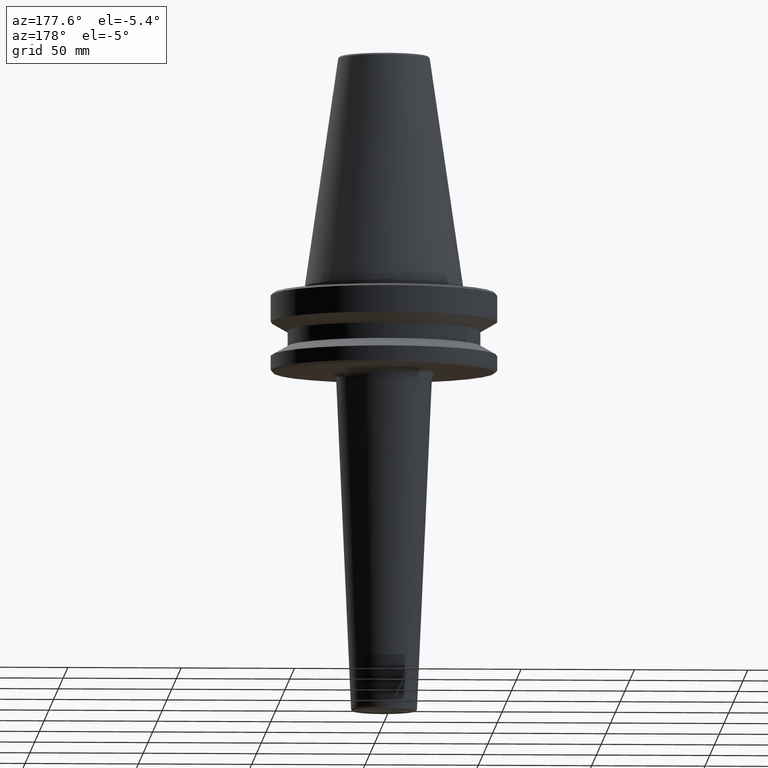
[diagram: clean part render]
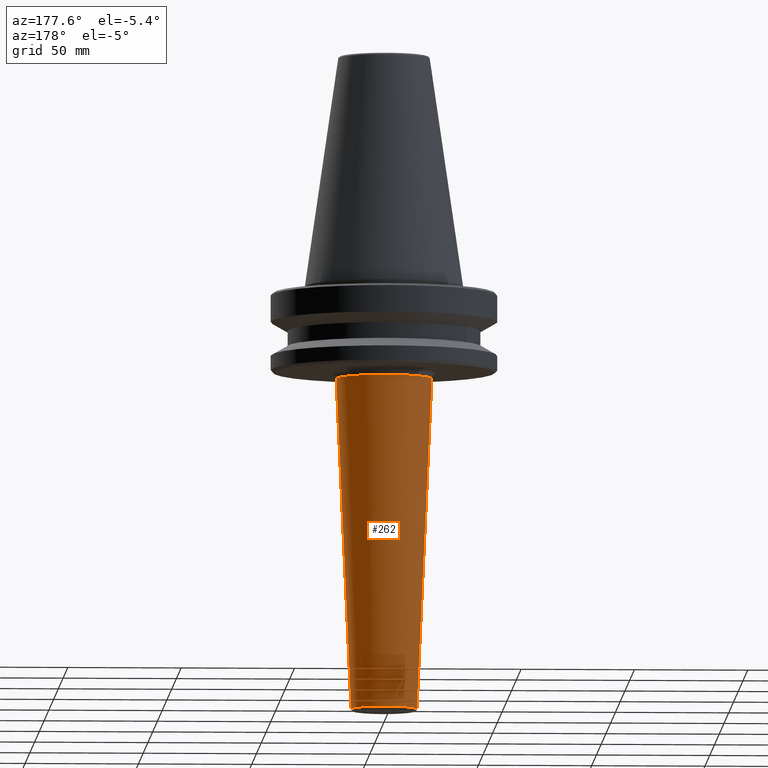
[diagram: same view with one face highlighted and labeled with its STEP entity id]
A machine part, auxiliary view. The second image highlights one B-rep face of the part: STEP entity #262.
In plain terms, the highlighted conical surface has half-angle 2.577 deg.
Its self-contained STEP definition (entity closure, byte-faithful):
#10 = AXIS2_PLACEMENT_3D ( 'NONE', #75, #738, #447 ) ;
#34 = ORIENTED_EDGE ( 'NONE', *, *, #446, .T. ) ;
#75 = CARTESIAN_POINT ( 'NONE',  ( 0.0000000000000000000, 0.0000000000000000000, -187.0449545065815200 ) ) ;
#91 = ORIENTED_EDGE ( 'NONE', *, *, #865, .T. ) ;
#94 = CARTESIAN_POINT ( 'NONE',  ( 0.0000000000000000000, 0.0000000000000000000, -38.00000000000000700 ) ) ;
#129 = EDGE_CURVE ( 'NONE', #466, #939, #393, .T. ) ;
#158 = AXIS2_PLACEMENT_3D ( 'NONE', #94, #165, #254 ) ;
#165 = DIRECTION ( 'NONE',  ( -0.0000000000000000000, -0.0000000000000000000, 1.000000000000000000 ) ) ;
#181 = DIRECTION ( 'NONE',  ( -0.04495450658148143800, 5.505339259225986400E-018, 0.9989890351440378100 ) ) ;
#208 = LINE ( 'NONE', #502, #306 ) ;
#226 = DIRECTION ( 'NONE',  ( -1.000000000000000000, 0.0000000000000000000, 0.0000000000000000000 ) ) ;
#254 = DIRECTION ( 'NONE',  ( 1.000000000000000000, 0.0000000000000000000, 0.0000000000000000000 ) ) ;
#262 = ADVANCED_FACE ( 'NONE', ( #890 ), #867, .T. ) ;
#300 = CARTESIAN_POINT ( 'NONE',  ( 0.0000000000000000000, 0.0000000000000000000, -40.86513648025557900 ) ) ;
#306 = VECTOR ( 'NONE', #181, 1000.000000000000000 ) ;
#381 = DIRECTION ( 'NONE',  ( 0.0000000000000000000, 0.0000000000000000000, -1.000000000000000000 ) ) ;
#393 = CIRCLE ( 'NONE', #10, 14.54297704720391400 ) ;
#446 = EDGE_CURVE ( 'NONE', #939, #997, #208, .T. ) ;
#447 = DIRECTION ( 'NONE',  ( 1.000000000000000000, 0.0000000000000000000, 0.0000000000000000000 ) ) ;
#466 = VERTEX_POINT ( 'NONE', #982 ) ;
#502 = CARTESIAN_POINT ( 'NONE',  ( -21.25000000000004300, 2.602374448188131000E-015, -38.00000000000000700 ) ) ;
#520 = ORIENTED_EDGE ( 'NONE', *, *, #804, .F. ) ;
#563 = CARTESIAN_POINT ( 'NONE',  ( -14.54297704720390500, 1.781001029093169000E-015, -187.0449545065815200 ) ) ;
#603 = DIRECTION ( 'NONE',  ( 0.04495450658148143800, 0.0000000000000000000, 0.9989890351440378100 ) ) ;
#654 = ORIENTED_EDGE ( 'NONE', *, *, #129, .T. ) ;
#672 = EDGE_LOOP ( 'NONE', ( #654, #34, #91, #520 ) ) ;
#720 = CARTESIAN_POINT ( 'NONE',  ( 21.12106885838854400, 0.0000000000000000000, -40.86513648025557900 ) ) ;
#723 = VERTEX_POINT ( 'NONE', #720 ) ;
#738 = DIRECTION ( 'NONE',  ( -0.0000000000000000000, -0.0000000000000000000, 1.000000000000000000 ) ) ;
#792 = VECTOR ( 'NONE', #603, 1000.000000000000000 ) ;
#804 = EDGE_CURVE ( 'NONE', #466, #723, #979, .T. ) ;
#822 = CIRCLE ( 'NONE', #992, 21.12106885838854000 ) ;
#865 = EDGE_CURVE ( 'NONE', #997, #723, #822, .T. ) ;
#867 = CONICAL_SURFACE ( 'NONE', #158, 21.25000000000004300, 0.04496966185232732100 ) ;
#879 = CARTESIAN_POINT ( 'NONE',  ( -21.12106885838854400, 2.586584937199637100E-015, -40.86513648025557900 ) ) ;
#890 = FACE_OUTER_BOUND ( 'NONE', #672, .T. ) ;
#939 = VERTEX_POINT ( 'NONE', #563 ) ;
#979 = LINE ( 'NONE', #986, #792 ) ;
#982 = CARTESIAN_POINT ( 'NONE',  ( 14.54297704720390500, 0.0000000000000000000, -187.0449545065815200 ) ) ;
#986 = CARTESIAN_POINT ( 'NONE',  ( 21.25000000000004300, 0.0000000000000000000, -38.00000000000000700 ) ) ;
#992 = AXIS2_PLACEMENT_3D ( 'NONE', #300, #381, #226 ) ;
#997 = VERTEX_POINT ( 'NONE', #879 ) ;